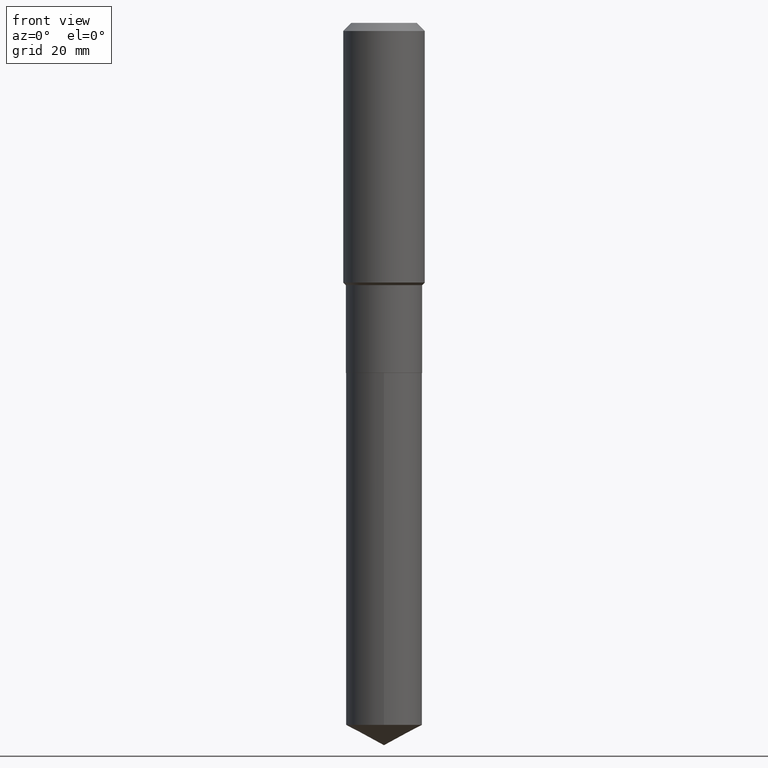
[diagram: clean part render]
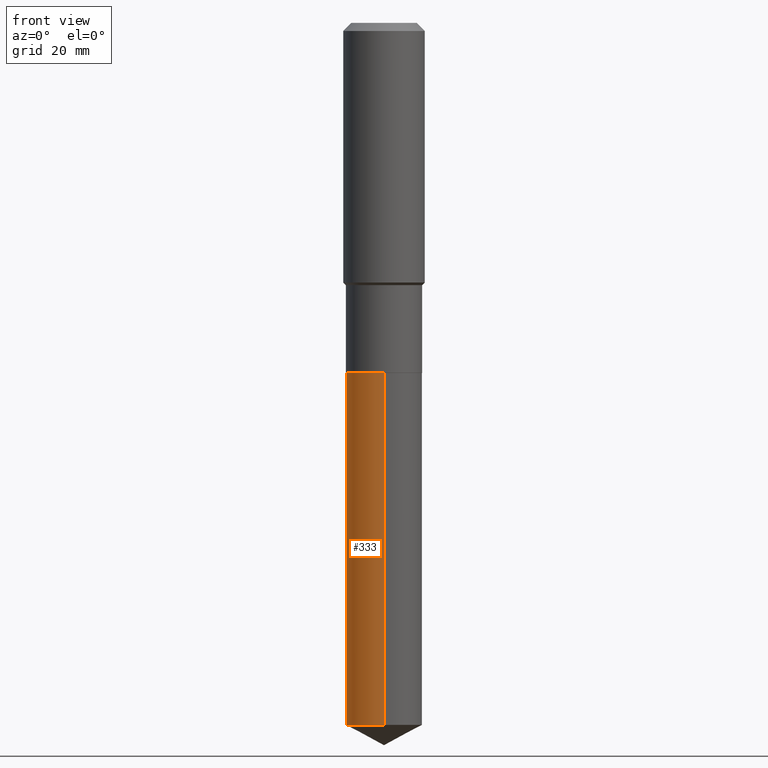
[diagram: same view with one face highlighted and labeled with its STEP entity id]
A machine part, front view. The second image highlights one B-rep face of the part: STEP entity #333.
In plain terms, the highlighted cylindrical surface (partial cylindrical patch) has radius 6.5481 mm, axis along (-0, 0, 1).
Its self-contained STEP definition (entity closure, byte-faithful):
#31 = DIRECTION ( 'NONE',  ( -2.445566682734492897E-29, 3.491341174053679928E-15, 1.000000000000000000 ) ) ;
#40 = EDGE_CURVE ( 'NONE', #169, #155, #236, .T. ) ;
#48 = ORIENTED_EDGE ( 'NONE', *, *, #479, .F. ) ;
#60 = LINE ( 'NONE', #404, #100 ) ;
#61 = DIRECTION ( 'NONE',  ( -2.445566682734492897E-29, 3.491341174053680323E-15, 1.000000000000000000 ) ) ;
#63 = ORIENTED_EDGE ( 'NONE', *, *, #408, .T. ) ;
#83 = ORIENTED_EDGE ( 'NONE', *, *, #40, .T. ) ;
#94 = CARTESIAN_POINT ( 'NONE',  ( 5.785001007911558337E-29, -8.259448255167344273E-15, -2.365599999999999703 ) ) ;
#100 = VECTOR ( 'NONE', #31, 39.37007874015748143 ) ;
#122 = CARTESIAN_POINT ( 'NONE',  ( 1.831779172789595679E-15, 0.2577999999999917025, -2.365600000000000147 ) ) ;
#123 = CARTESIAN_POINT ( 'NONE',  ( 1.831779172789654054E-15, 0.2577999999999834313, -4.744925308517672136 ) ) ;
#138 = DIRECTION ( 'NONE',  ( -6.982962677686265922E-15, -1.000000000000000000, 3.179031800229941890E-15 ) ) ;
#141 = VERTEX_POINT ( 'NONE', #193 ) ;
#143 = AXIS2_PLACEMENT_3D ( 'NONE', #242, #390, #468 ) ;
#145 = ORIENTED_EDGE ( 'NONE', *, *, #334, .F. ) ;
#149 = VERTEX_POINT ( 'NONE', #164 ) ;
#155 = VERTEX_POINT ( 'NONE', #436 ) ;
#164 = CARTESIAN_POINT ( 'NONE',  ( 1.831779172789654449E-15, 0.2577999999999917025, -2.365600000000000147 ) ) ;
#169 = VERTEX_POINT ( 'NONE', #123 ) ;
#173 = DIRECTION ( 'NONE',  ( -2.445566682734492897E-29, 3.491341174053679928E-15, 1.000000000000000000 ) ) ;
#186 = VECTOR ( 'NONE', #173, 39.37007874015748143 ) ;
#193 = CARTESIAN_POINT ( 'NONE',  ( -1.800207778307461580E-15, -0.2578000000000082448, -2.365599999999998815 ) ) ;
#219 = EDGE_LOOP ( 'NONE', ( #48, #83, #63, #145 ) ) ;
#236 = CIRCLE ( 'NONE', #143, 0.2577999999999999736 ) ;
#242 = CARTESIAN_POINT ( 'NONE',  ( 1.160379970980934327E-28, -1.656648467126306659E-14, -4.744925308517671247 ) ) ;
#258 = LINE ( 'NONE', #122, #186 ) ;
#259 = DIRECTION ( 'NONE',  ( -6.982962677686265922E-15, -1.000000000000000000, 3.179031800229941890E-15 ) ) ;
#262 = CARTESIAN_POINT ( 'NONE',  ( 5.785001007911558337E-29, -8.259448255167344273E-15, -2.365599999999999703 ) ) ;
#324 = AXIS2_PLACEMENT_3D ( 'NONE', #94, #61, #138 ) ;
#329 = DIRECTION ( 'NONE',  ( -2.445566682734492897E-29, 3.491341174053680323E-15, 1.000000000000000000 ) ) ;
#333 = ADVANCED_FACE ( 'NONE', ( #490 ), #370, .T. ) ;
#334 = EDGE_CURVE ( 'NONE', #149, #141, #483, .T. ) ;
#370 = CYLINDRICAL_SURFACE ( 'NONE', #324, 0.2577999999999999736 ) ;
#390 = DIRECTION ( 'NONE',  ( -2.445566682734492897E-29, 3.491341174053680323E-15, 1.000000000000000000 ) ) ;
#404 = CARTESIAN_POINT ( 'NONE',  ( -1.800207778307461580E-15, -0.2578000000000082448, -2.365599999999998815 ) ) ;
#407 = AXIS2_PLACEMENT_3D ( 'NONE', #262, #329, #259 ) ;
#408 = EDGE_CURVE ( 'NONE', #155, #141, #60, .T. ) ;
#436 = CARTESIAN_POINT ( 'NONE',  ( -1.800207778307403599E-15, -0.2578000000000165715, -4.744925308517670359 ) ) ;
#468 = DIRECTION ( 'NONE',  ( -6.982962677686265922E-15, -1.000000000000000000, 4.238709066973255853E-15 ) ) ;
#479 = EDGE_CURVE ( 'NONE', #169, #149, #258, .T. ) ;
#483 = CIRCLE ( 'NONE', #407, 0.2577999999999999736 ) ;
#490 = FACE_OUTER_BOUND ( 'NONE', #219, .T. ) ;